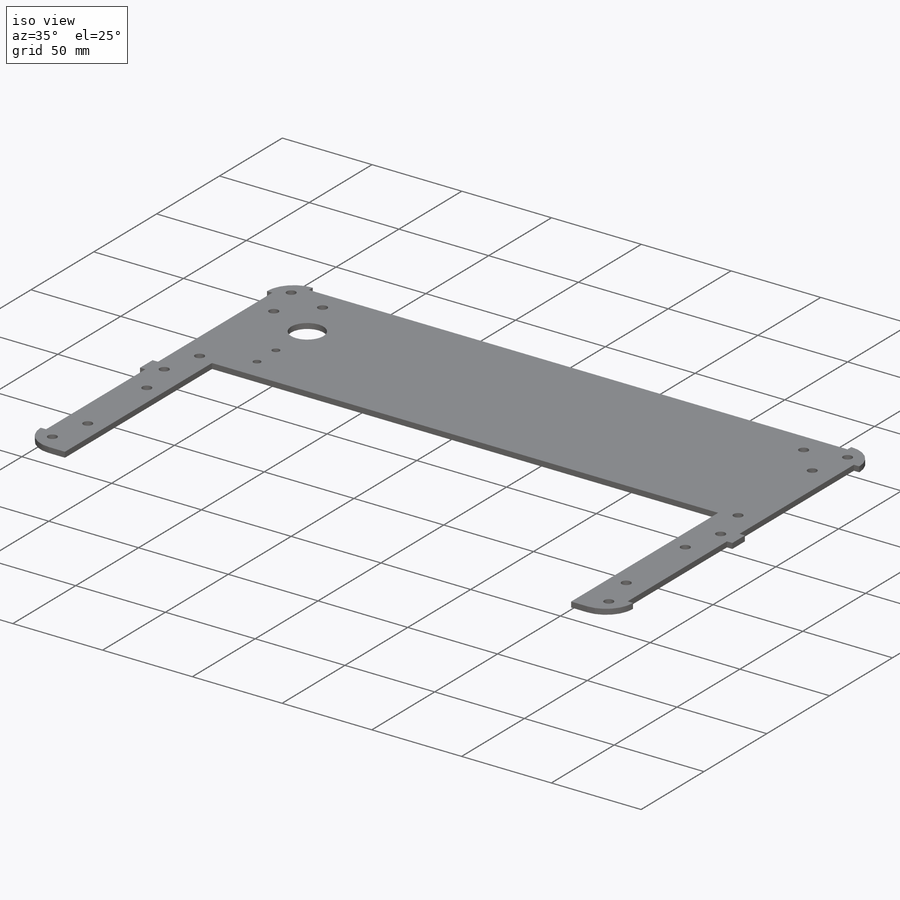
[diagram: iso view]
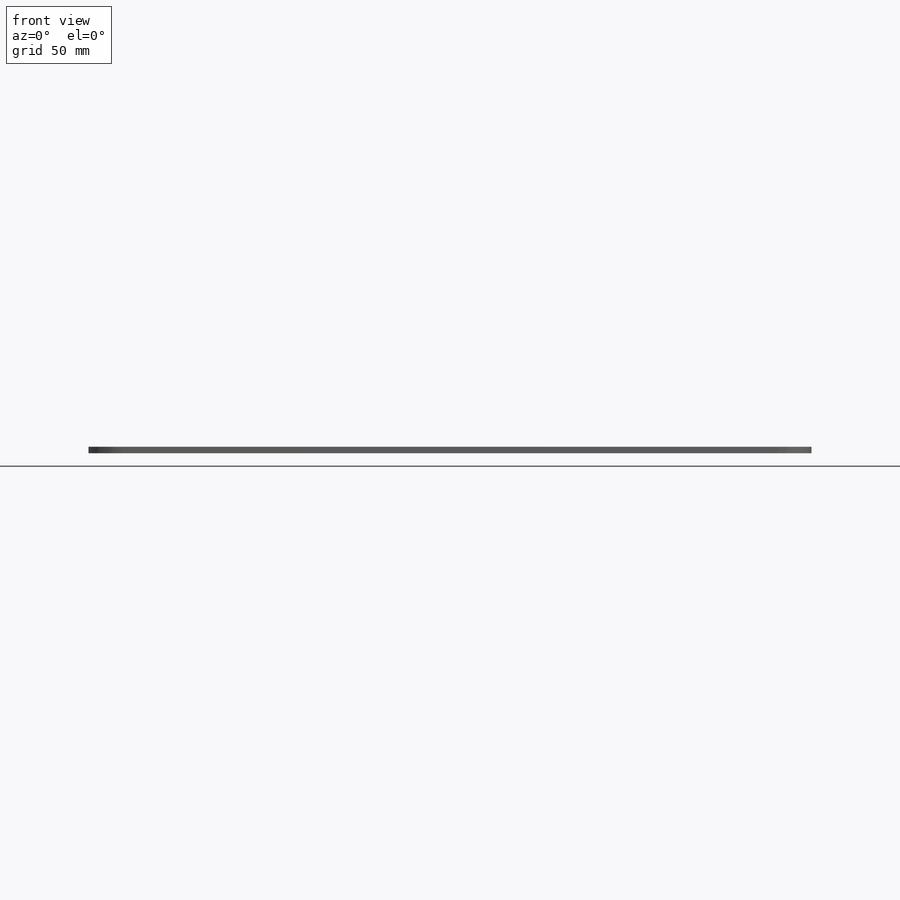
[diagram: front view]
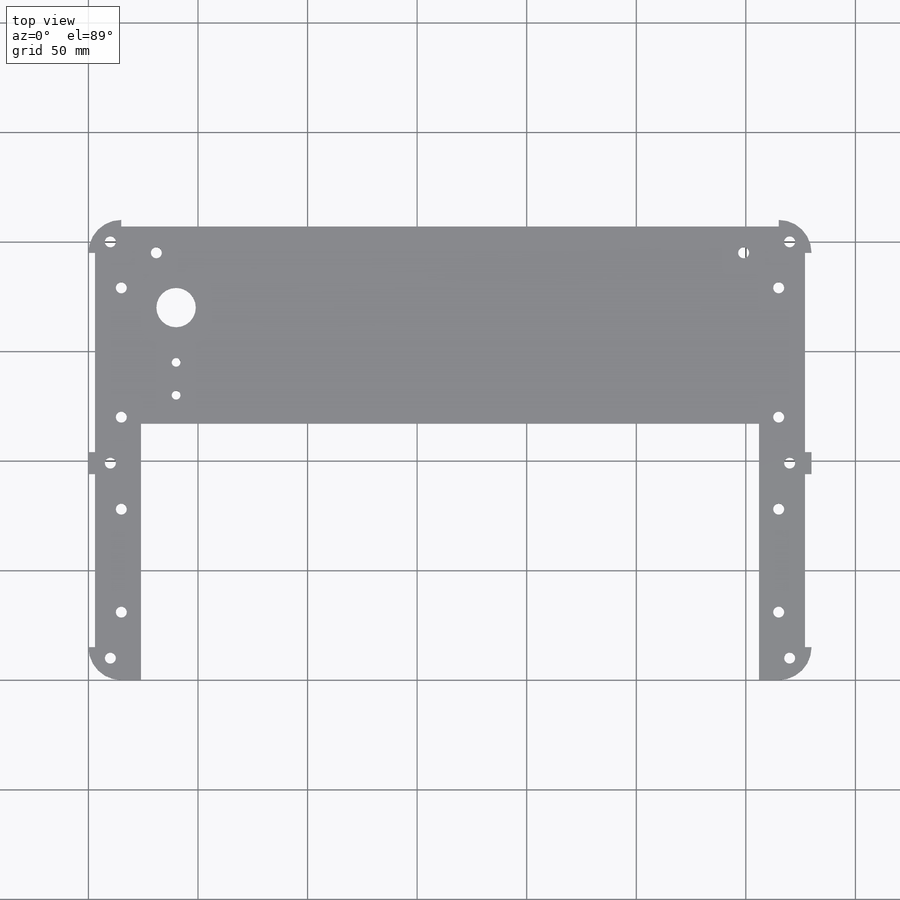
[diagram: top view]
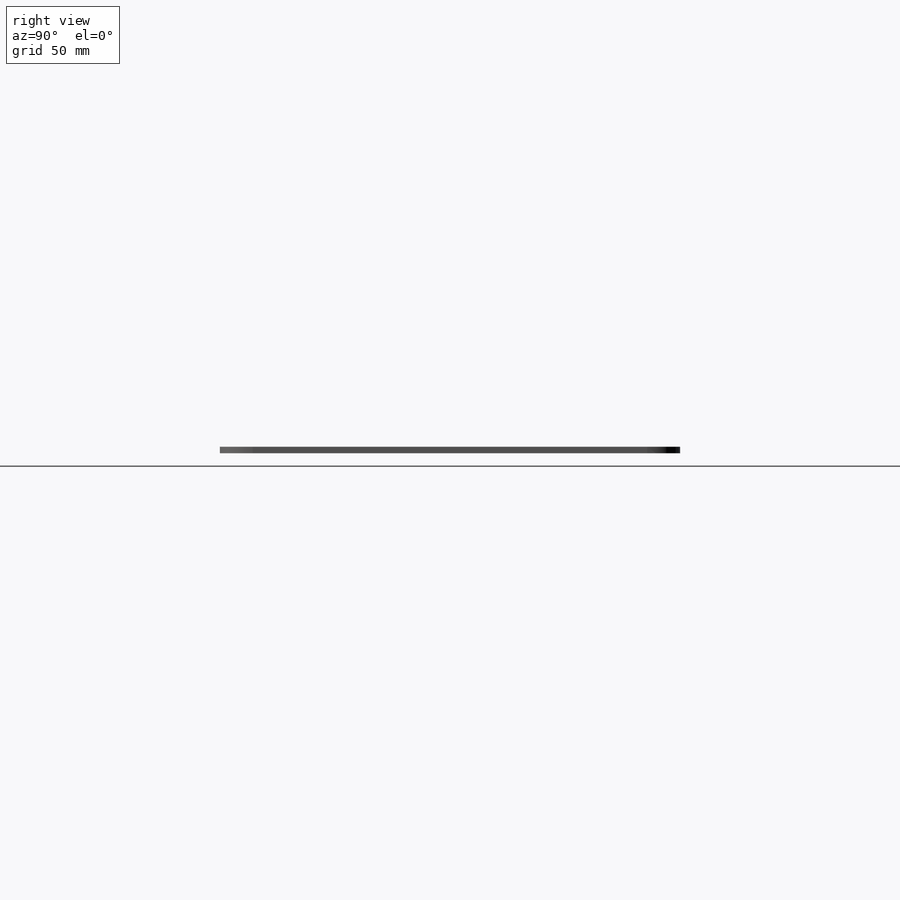
[diagram: right view]
SOLIDWORKS PART (.sldprt)
format: sldprt  version: not decoded by parser v0  size: 246,784 bytes
history: native  units: mm
features: plane x3, sketch x3, cut_extrude x2, material x1, extrude x1, fillet x1 (+11 scaffold rows collapsed)
feature tree (22):
  scaffold x11  (default folders/planes/origin — collapsed)
  material  "Matériau <non spécifié>"
  plane  "Plan de face"
  plane  "Plan de dessus"
  plane  "Plan de droite"
  sketch  "Esquisse1"  dims[c1.D3=5.0mm c1.D12=5.0mm c1.D8=18.0mm c1.D9=18.0mm c1.D10=18.0mm c1.D11=4.0mm c1.D1=330.0mm c1.D2=210.0mm c1.D4=10.0mm c1.D5=10.0mm c1.D6=14.0mm c1.D7=14.0mm c2.D8=20.0mm c2.D9=30.0mm c2.D10=40.0mm c2.D11=20.0mm c2.D13=12.0mm c2.D7=117.0mm c2.D14=70.0mm c2.D15=15.0mm c2.D16=101.0mm c3.D13=101.0mm c3.D16=89.0mm c3.D17=60.0mm c3.D15=20.0mm c3.D9=40.0mm c3.D10=40.0mm c3.D14=15.0mm c4.D15=25.0mm]
  extrude  "Extrusion1"  Depth=3mm
  fillet  "Congé1"  Radius=15mm
  sketch  "Esquisse2"  dims[D1=3.0mm D2=3.0mm D3=5.0mm D4=5.0mm]
  cut_extrude  "Extrusion2"  [1 undecoded]
  sketch  "Esquisse3"  dims[c1.D1=~10.622705mm c1.D2=~10.622705mm c1.D3=5.0mm c1.D4=~9.050057mm c1.D5=~9.050057mm c1.D6=~13.330678mm c1.D7=5.0mm c1.D8=5.0mm c2.D6=5.0mm c2.D1=12.0mm c2.D2=28.0mm c2.D4=12.0mm c2.D5=28.0mm c3.D6=28.0mm c3.D7=28.0mm c3.D8=28.0mm c4.D7=16.0mm c4.D8=16.0mm c4.D6=16.0mm]
  cut_extrude  "Extrusion3"  [1 undecoded]
decode coverage: 5 of 7 modeling features carry decoded parameters
note: ~ marks probable driven/reference dimensions
note: 2 parameter values undecoded
note: suppression state not decoded; provenance and decode notes live in map.json
